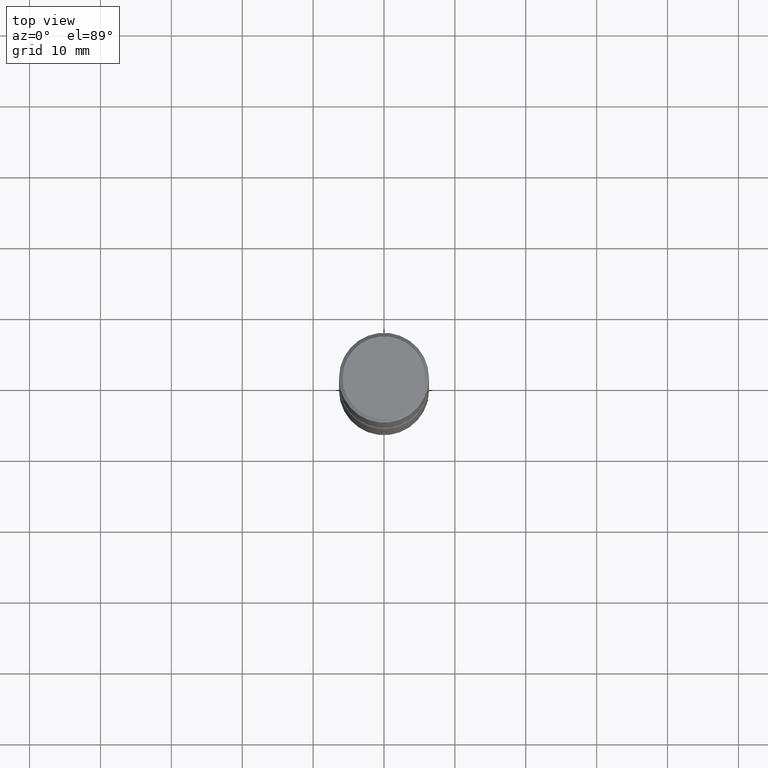
[diagram: clean part render]
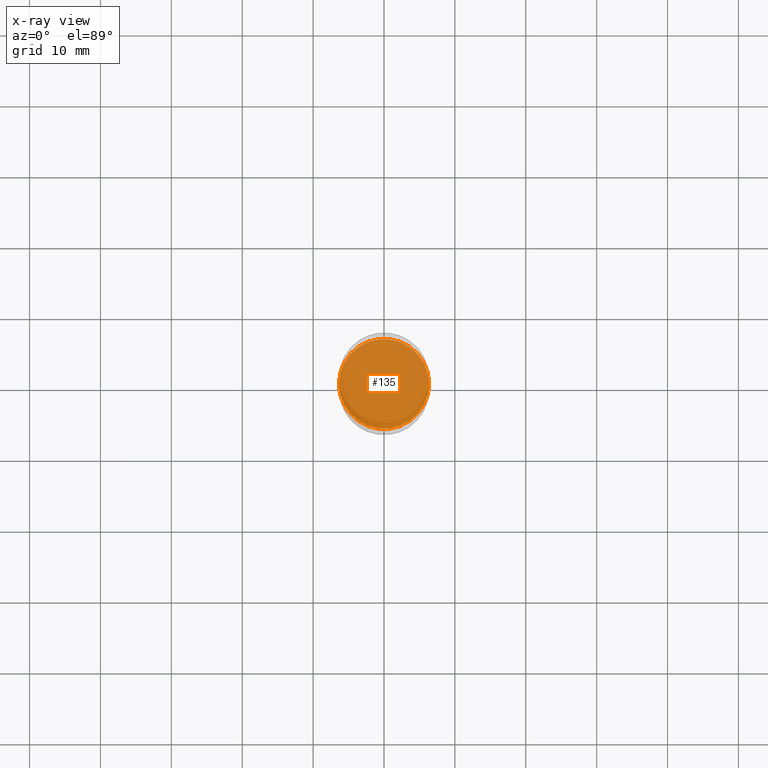
[diagram: x-ray — body ghosted, one internal face saturated and labeled with its STEP entity id]
A machine part, top view, then the same camera in x-ray: the body is ghosted and one INTERNAL B-rep face — a face not visible from any outside direction — is saturated and labeled: STEP entity #135.
In plain terms, the highlighted planar face has unit normal (0, -0, -1).
Its self-contained STEP definition (entity closure, byte-faithful):
#27 = CARTESIAN_POINT ( 'NONE',  ( 4.890937612370274875E-29, -6.982962677686292743E-15, -2.000000000000000444 ) ) ;
#34 = CARTESIAN_POINT ( 'NONE',  ( 4.890937612370274875E-29, -6.982962677686292743E-15, -2.000000000000000444 ) ) ;
#72 = DIRECTION ( 'NONE',  ( 1.000000000000000000, -6.982962677686268288E-15, 0.000000000000000000 ) ) ;
#80 = AXIS2_PLACEMENT_3D ( 'NONE', #550, #158, #343 ) ;
#135 = ADVANCED_FACE ( 'NONE', ( #246 ), #431, .F. ) ;
#146 = ORIENTED_EDGE ( 'NONE', *, *, #464, .T. ) ;
#153 = DIRECTION ( 'NONE',  ( 1.000000000000000000, -6.982962677686268288E-15, 0.000000000000000000 ) ) ;
#158 = DIRECTION ( 'NONE',  ( 2.438088387897960049E-29, -3.491481338843145188E-15, -1.000000000000000000 ) ) ;
#169 = AXIS2_PLACEMENT_3D ( 'NONE', #27, #465, #72 ) ;
#180 = EDGE_LOOP ( 'NONE', ( #146, #199 ) ) ;
#199 = ORIENTED_EDGE ( 'NONE', *, *, #453, .T. ) ;
#206 = CARTESIAN_POINT ( 'NONE',  ( 0.2500000000000004996, -8.728703347107863365E-15, -2.000000000000000444 ) ) ;
#246 = FACE_OUTER_BOUND ( 'NONE', #180, .T. ) ;
#286 = CIRCLE ( 'NONE', #169, 0.2500000000000004996 ) ;
#299 = VERTEX_POINT ( 'NONE', #455 ) ;
#343 = DIRECTION ( 'NONE',  ( -1.000000000000000000, 6.982962677686265922E-15, -4.876176775795935793E-29 ) ) ;
#431 = PLANE ( 'NONE',  #80 ) ;
#451 = VERTEX_POINT ( 'NONE', #206 ) ;
#453 = EDGE_CURVE ( 'NONE', #299, #451, #286, .T. ) ;
#455 = CARTESIAN_POINT ( 'NONE',  ( -0.2500000000000004996, -8.645714957046537626E-15, -2.000000000000000444 ) ) ;
#464 = EDGE_CURVE ( 'NONE', #451, #299, #548, .T. ) ;
#465 = DIRECTION ( 'NONE',  ( -2.445468806185136597E-29, 3.491481338843145583E-15, 1.000000000000000000 ) ) ;
#507 = DIRECTION ( 'NONE',  ( -2.445468806185136597E-29, 3.491481338843145583E-15, 1.000000000000000000 ) ) ;
#523 = AXIS2_PLACEMENT_3D ( 'NONE', #34, #507, #153 ) ;
#548 = CIRCLE ( 'NONE', #523, 0.2500000000000004996 ) ;
#550 = CARTESIAN_POINT ( 'NONE',  ( 1.838714799431134984E-29, -1.135391946754910364E-14, -2.000000000000000444 ) ) ;